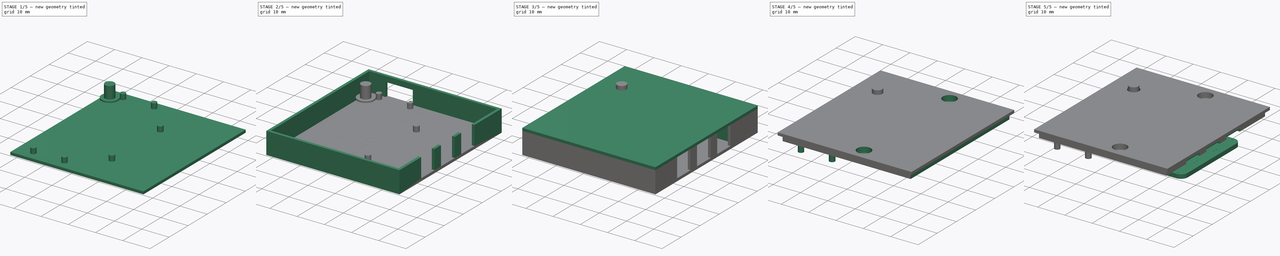
[diagram: build sequence overview — one tinted view per stage of 5, left to right]
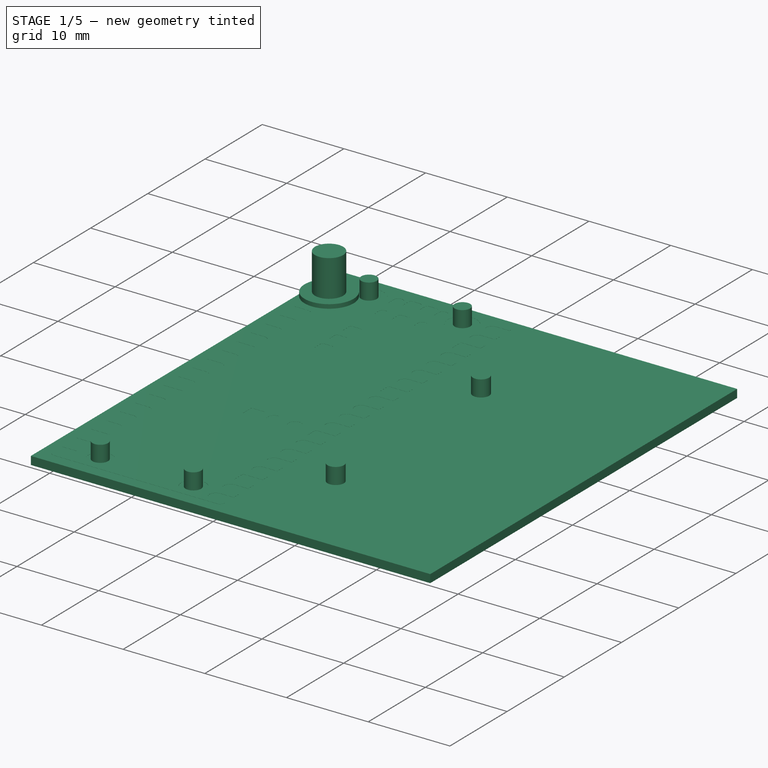
[diagram: stage 1 of 5 — iso view after this stage's code; geometry added in this stage tinted green]
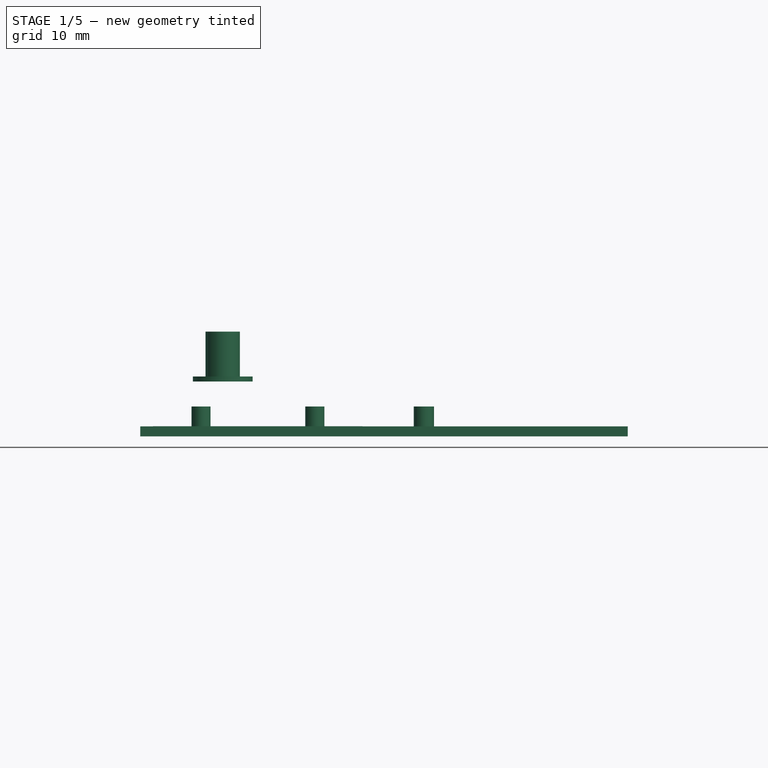
[diagram: stage 1 of 5 — front view after this stage's code; geometry added in this stage tinted green]
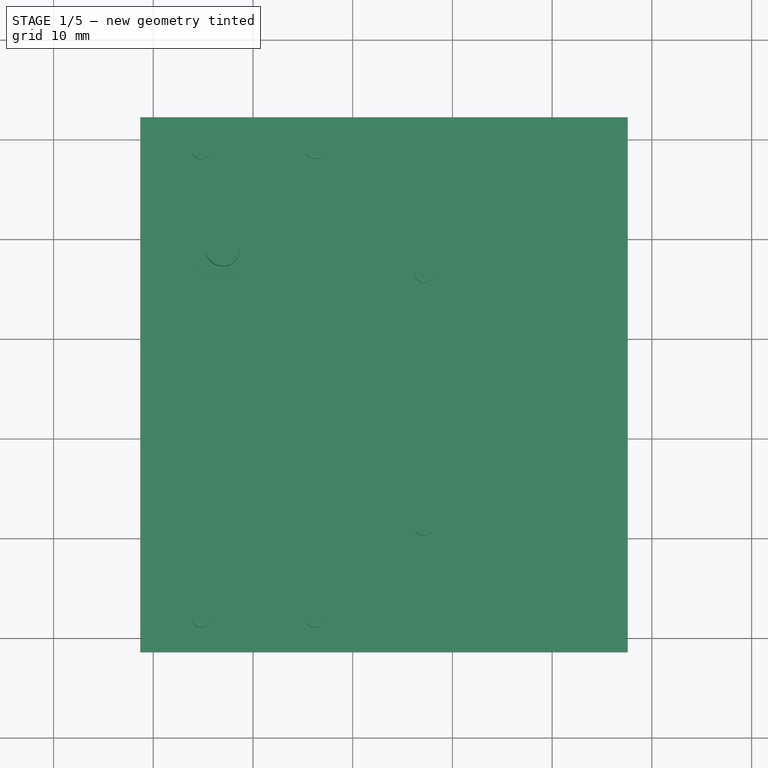
[diagram: stage 1 of 5 — top view after this stage's code; geometry added in this stage tinted green]
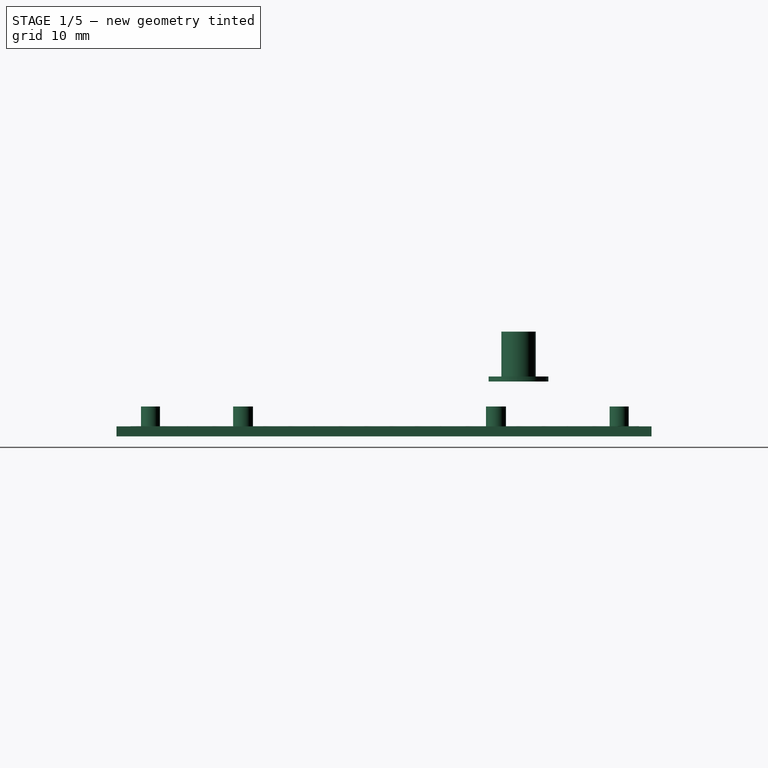
[diagram: stage 1 of 5 — right view after this stage's code; geometry added in this stage tinted green]
FCSTD DOCUMENT  (FreeCAD 1.0R39109 (Git))
Label: web_signalgenerator
License: All rights reserved
LicenseURL: https://en.wikipedia.org/wiki/All_rights_reserved
objects: Sketcher::SketchObject×19, Part::Feature×11, PartDesign::Pad×11, PartDesign::Pocket×6, App::Part×4, PartDesign::Body×3, PartDesign::SubShapeBinder×2, PartDesign::ShapeBinder×2, Part::FeaturePython×1, App::DocumentObjectGroup×1
note: 108 computed .brp shape members not serialized (recipe doc carries the construction recipe); baked Part::Feature solids carry a one-line shape summary decoded from their .brp

FEATURE [Part::Feature] Part__Feature  label="SOLDERMASK_TOP"
  shape: bbox 21 x 51 x 0.0127 mm, 1524 faces (baked)
FEATURE [Part::Feature] Part__Feature001  label="Dielectric"
  shape: bbox 21 x 51 x 0.868 mm, 240 faces (baked)
FEATURE [Part::Feature] Part__Feature002  label="SOLDERMASK_BOTTOM"
  shape: bbox 21 x 51 x 0.0127 mm, 330 faces (baked)
FEATURE [App::Part] Shapes
  Group = -> [Part__Feature,Part__Feature001,Part__Feature002]
  Origin = -> Origin
FEATURE [Part::Feature] Part__Feature003  label="AVAGO_QSM"
  shape: bbox 1.65 x 0.725 x 0.675 mm, 50 faces, 5 solids (baked)
FEATURE [Part::Feature] Part__Feature004  label="FCI_10103594-0001LF"
  shape: bbox 8.086 x 6.171 x 3.591 mm, 837 faces, 7 solids (baked)
FEATURE [Part::Feature] Part__Feature005  label="RF_SHIELD_PICOW"
  shape: bbox 12 x 10 x 1.7 mm, 6 faces (baked)
FEATURE [Part::Feature] Part__Feature006  label="RPI_RP2040"
  shape: bbox 7 x 7 x 0.9 mm, 6 faces (baked)
FEATURE [Part::Feature] Part__Feature007  label="RT-WDFN-14AL"
  shape: bbox 4 x 3 x 0.8 mm, 6 faces (baked)
FEATURE [Part::Feature] Part__Feature008  label="SOD123FL"
  shape: bbox 1.65 x 3.6 x 0.98 mm, 44 faces, 4 solids (baked)
FEATURE [Part::Feature] Part__Feature009  label="TONEPARTS_TP-1221U-K9K5325"
  shape: bbox 3.2 x 4.25 x 2.5 mm, 15 faces (baked)
FEATURE [Part::Feature] Part__Feature010  label="XTAL320X250X100"
  shape: bbox 3.2 x 2.5 x 0.92 mm, 26 faces (baked)
FEATURE [App::Part] Symbols
  Group = -> [Part__Feature003,Part__Feature004,Part__Feature005,Part__Feature006,Part__Feature007,Part__Feature008,Part__Feature009,Part__Feature010]
  Origin = -> Origin001
FEATURE [App::Part] rpi_picow_r3_2_brd  label="rpi-picow-r3-2.brd"
  Group = -> [Shapes,Symbols]
  Origin = -> Origin002
FEATURE [Sketcher::SketchObject] PCB_Border
  ArcFitTolerance = 1e-06
  FullyConstrained = false
  MakeInternals = false
  sketch-geometry (8):
    g0: LineSegment StartX=0 StartY=2.54 StartZ=0 EndX=0 EndY=19.05 EndZ=0
    g1: ArcOfCircle CenterX=2.54 CenterY=19.05 CenterZ=0 NormalX=0 NormalY=0 NormalZ=-1 AngleXU=-1.4e-15 Radius=2.54 StartAngle=0 EndAngle=1.5708
    g2: LineSegment StartX=2.54 StartY=21.59 StartZ=0 EndX=27.94 EndY=21.59 EndZ=0
    g3: ArcOfCircle CenterX=27.94 CenterY=19.05 CenterZ=0 NormalX=0 NormalY=0 NormalZ=-1 AngleXU=1.5708 Radius=2.54 StartAngle=0 EndAngle=1.5708
    g4: LineSegment StartX=30.48 StartY=19.05 StartZ=0 EndX=30.48 EndY=2.54 EndZ=0
    g5: ArcOfCircle CenterX=27.94 CenterY=2.54 CenterZ=0 NormalX=0 NormalY=0 NormalZ=-1 AngleXU=3.14159 Radius=2.54 StartAngle=0 EndAngle=1.5708
    g6: LineSegment StartX=27.94 StartY=0 StartZ=0 EndX=2.54 EndY=0 EndZ=0
    g7: ArcOfCircle CenterX=2.54 CenterY=2.54 CenterZ=0 NormalX=0 NormalY=0 NormalZ=-1 AngleXU=-1.5708 Radius=2.54 StartAngle=0 EndAngle=1.5708
FEATURE [Sketcher::SketchObject] PCB_Holes
  ArcFitTolerance = 1e-06
  FullyConstrained = false
  MakeInternals = false
  sketch-geometry (22):
    g0: Circle CenterX=29.464 CenterY=19.05 CenterZ=0 NormalX=0 NormalY=0 NormalZ=1 AngleXU=0 Radius=0.19785
    g1: Circle CenterX=21.082 CenterY=19.05 CenterZ=0 NormalX=0 NormalY=0 NormalZ=1 AngleXU=0 Radius=0.19785
    g2: Circle CenterX=19.558 CenterY=19.05 CenterZ=0 NormalX=0 NormalY=0 NormalZ=1 AngleXU=0 Radius=0.19785
    g3: Circle CenterX=10.922 CenterY=19.05 CenterZ=0 NormalX=0 NormalY=0 NormalZ=1 AngleXU=0 Radius=0.19785
    g4: Circle CenterX=9.398 CenterY=19.05 CenterZ=0 NormalX=0 NormalY=0 NormalZ=1 AngleXU=0 Radius=0.19785
    g5: Circle CenterX=1.016 CenterY=19.05 CenterZ=0 NormalX=0 NormalY=0 NormalZ=1 AngleXU=0 Radius=0.19785
    g6: Circle CenterX=27.432 CenterY=9.398 CenterZ=0 NormalX=0 NormalY=0 NormalZ=1 AngleXU=0 Radius=0.19785
    g7: Circle CenterX=16.002 CenterY=12.446 CenterZ=0 NormalX=0 NormalY=0 NormalZ=1 AngleXU=0 Radius=0.19785
    g8: Circle CenterX=17.018 CenterY=16.002 CenterZ=0 NormalX=0 NormalY=0 NormalZ=1 AngleXU=0 Radius=0.19785
    g9: Circle CenterX=14.986 CenterY=16.002 CenterZ=0 NormalX=0 NormalY=0 NormalZ=1 AngleXU=0 Radius=0.19785
    g10: Circle CenterX=13.716 CenterY=14.478 CenterZ=0 NormalX=0 NormalY=0 NormalZ=1 AngleXU=0 Radius=0.19785
    g11: Circle CenterX=22.098 CenterY=8.382 CenterZ=0 NormalX=0 NormalY=0 NormalZ=1 AngleXU=0 Radius=0.19785
    g12: Circle CenterX=18.034 CenterY=5.842 CenterZ=0 NormalX=0 NormalY=0 NormalZ=1 AngleXU=0 Radius=0.19785
    g13: Circle CenterX=27.94 CenterY=2.54 CenterZ=0 NormalX=0 NormalY=0 NormalZ=1 AngleXU=0 Radius=1.251
    g14: Circle CenterX=2.54 CenterY=2.54 CenterZ=0 NormalX=0 NormalY=0 NormalZ=1 AngleXU=0 Radius=1.251
    g15: Circle CenterX=22.86 CenterY=2.54 CenterZ=0 NormalX=0 NormalY=0 NormalZ=1 AngleXU=0 Radius=0.501
    g16: Circle CenterX=20.32 CenterY=2.54 CenterZ=0 NormalX=0 NormalY=0 NormalZ=1 AngleXU=0 Radius=0.501
    g17: Circle CenterX=17.78 CenterY=2.54 CenterZ=0 NormalX=0 NormalY=0 NormalZ=1 AngleXU=0 Radius=0.501
    g18: Circle CenterX=15.24 CenterY=2.54 CenterZ=0 NormalX=0 NormalY=0 NormalZ=1 AngleXU=0 Radius=0.501
    g19: Circle CenterX=12.7 CenterY=2.54 CenterZ=0 NormalX=0 NormalY=0 NormalZ=1 AngleXU=0 Radius=0.501
    g20: Circle CenterX=10.16 CenterY=2.54 CenterZ=0 NormalX=0 NormalY=0 NormalZ=1 AngleXU=0 Radius=0.501
    g21: Circle CenterX=7.62 CenterY=2.54 CenterZ=0 NormalX=0 NormalY=0 NormalZ=1 AngleXU=0 Radius=0.501
FEATURE [Sketcher::SketchObject] Sketch
  ArcFitTolerance = 1e-06
  AttachmentSupport = -> [Part__Feature002]
  FullyConstrained = false
  MakeInternals = false
  MapMode = 5
  Placement = pos=(0,0,-0.9607) rot=(1,0,0;3.14159rad)
  sketch-geometry (4):
    g0: LineSegment StartX=-1.3105 StartY=1.41744 StartZ=0 EndX=-1.3105 EndY=-52.238 EndZ=0
    g1: LineSegment StartX=-1.3105 StartY=-52.238 StartZ=0 EndX=47.5855 EndY=-52.238 EndZ=0
    g2: LineSegment StartX=47.5855 StartY=-52.238 StartZ=0 EndX=47.5855 EndY=1.41744 EndZ=0
    g3: LineSegment StartX=47.5855 StartY=1.41744 StartZ=0 EndX=-1.3105 EndY=1.41744 EndZ=0
  constraints (8):
    c: Coincident(g0,g1)
    c: Coincident(g1,g2)
    c: Coincident(g2,g3)
    c: Coincident(g3,g0)
    c: Vertical(g0)
    c: Vertical(g2)
    c: Horizontal(g1)
    c: Horizontal(g3)
FEATURE [PartDesign::Pad] Pad
  Direction = (0,0,-1)
  Length = 1
  Length2 = 10
  Profile = -> Sketch
  ReferenceAxis = -> Sketch [N_Axis]
  Refine = true
  Suppressed = false
  Type = 0
FEATURE [Sketcher::SketchObject] Sketch001
  ArcFitTolerance = 1e-06
  AttachmentSupport = -> [Pad]
  FullyConstrained = false
  MakeInternals = false
  MapMode = 5
  Placement = pos=(0,0,-0.9607) rot=(0,0,1;0rad)
  sketch-geometry (6):
    g0: Circle CenterX=16.2121 CenterY=49.0044 CenterZ=0 NormalX=0 NormalY=0 NormalZ=1 AngleXU=0 Radius=0.95
    g1: Circle CenterX=4.79462 CenterY=2.00088 CenterZ=0 NormalX=0 NormalY=0 NormalZ=1 AngleXU=0 Radius=0.95
    g2: Circle CenterX=16.1908 CenterY=1.99775 CenterZ=0 NormalX=0 NormalY=0 NormalZ=1 AngleXU=0 Radius=0.95
    g3: Circle CenterX=4.78756 CenterY=48.9889 CenterZ=0 NormalX=0 NormalY=0 NormalZ=1 AngleXU=0 Radius=0.95
    g4: Circle CenterX=27.1477 CenterY=36.6424 CenterZ=0 NormalX=0 NormalY=0 NormalZ=1 AngleXU=0 Radius=1
    g5: Circle CenterX=27.1242 CenterY=11.2748 CenterZ=0 NormalX=0 NormalY=0 NormalZ=1 AngleXU=0 Radius=1
  constraints (6):
    c: Diameter(g0) = 1.9
    c: Diameter(g1) = 1.9
    c: Diameter(g2) = 1.9
    c: Diameter(g3) = 1.9
    c: Diameter(g4) = 2
    c: Diameter(g5) = 2
FEATURE [PartDesign::Pad] Pad001
  BaseFeature = -> Pad
  Direction = (0,0,1)
  Length = 2
  Length2 = 10
  Profile = -> Sketch001
  ReferenceAxis = -> Sketch001 [N_Axis]
  Refine = true
  Suppressed = false
  Type = 0
FEATURE [PartDesign::Body] Body
  AllowCompound = false
  Group = -> [Sketch,Pad,Sketch001,Pad001,Sketch002,Pad002,Sketch003,Pocket,Sketch004,Pocket001,Sketch012,Pad006,Sketch013,Pad007,Sketch014,Pad008]
  Origin = -> Origin004
  Tip = -> Pad008
FEATURE [PartDesign::ShapeBinder] CopyPocket005
  TraceSupport = false
FEATURE [Sketcher::SketchObject] Sketch015
  ArcFitTolerance = 1e-06
  AttachmentSupport = -> [CopyPocket005]
  FullyConstrained = false
  MakeInternals = false
  MapMode = 5
  Placement = pos=(0,0,4.0393) rot=(1,0,0;3.14159rad)
  sketch-geometry (1):
    g0: Circle CenterX=6.96652 CenterY=-38.9009 CenterZ=0 NormalX=0 NormalY=0 NormalZ=1 AngleXU=0 Radius=1.72333
FEATURE [PartDesign::Pad] Pad009
  Direction = (0,0,-1)
  Length = 4.5
  Length2 = 10
  Profile = -> Sketch015
  ReferenceAxis = -> Sketch015 [N_Axis]
  Refine = true
  Reversed = true
  Suppressed = false
  Type = 0
FEATURE [Sketcher::SketchObject] Sketch016
  ArcFitTolerance = 1e-06
  AttachmentSupport = -> [Pad009]
  ExternalGeometry = -> [Pad009]
  FullyConstrained = true
  MakeInternals = false
  MapMode = 5
  Placement = pos=(0,0,4.0393) rot=(1,0,0;3.14159rad)
  sketch-geometry (1):
    g0: Circle CenterX=6.96652 CenterY=-38.9009 CenterZ=0 NormalX=0 NormalY=0 NormalZ=1 AngleXU=0 Radius=3
  constraints (2):
    c: Coincident(g0,g-3)
    c: Diameter(g0) = 6
FEATURE [PartDesign::Pad] Pad010
  BaseFeature = -> Pad009
  Direction = (0,0,-1)
  Length = 0.5
  Length2 = 10
  Profile = -> Sketch016
  ReferenceAxis = -> Sketch016 [N_Axis]
  Refine = true
  Suppressed = false
  Type = 0
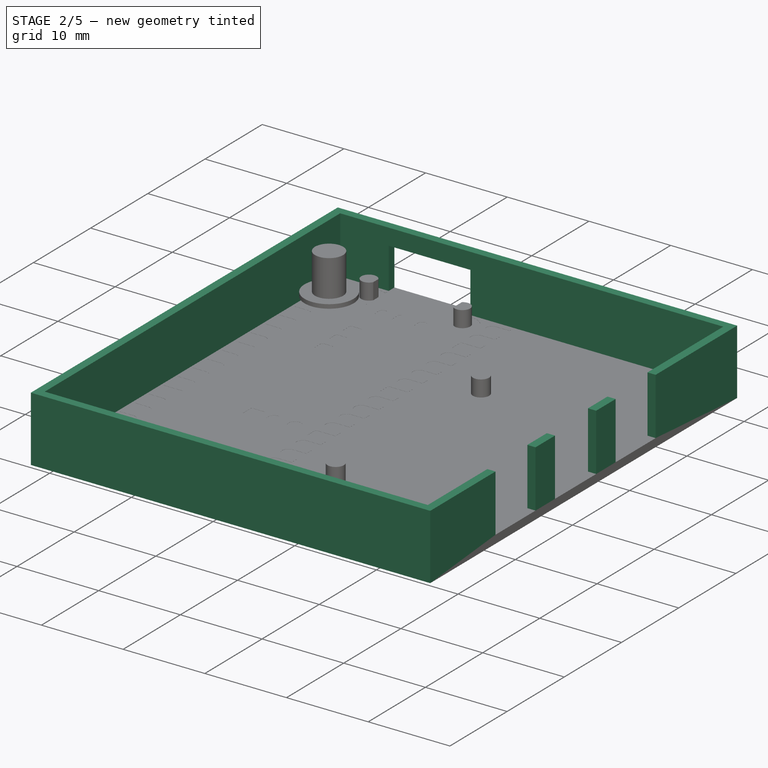
[diagram: stage 2 of 5 — iso view after this stage's code; geometry added in this stage tinted green]
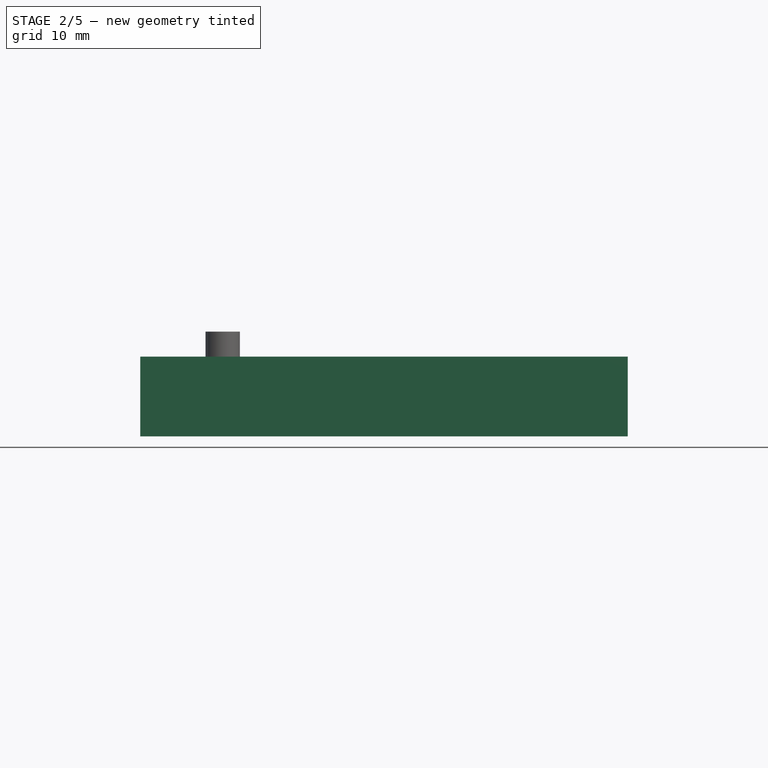
[diagram: stage 2 of 5 — front view after this stage's code; geometry added in this stage tinted green]
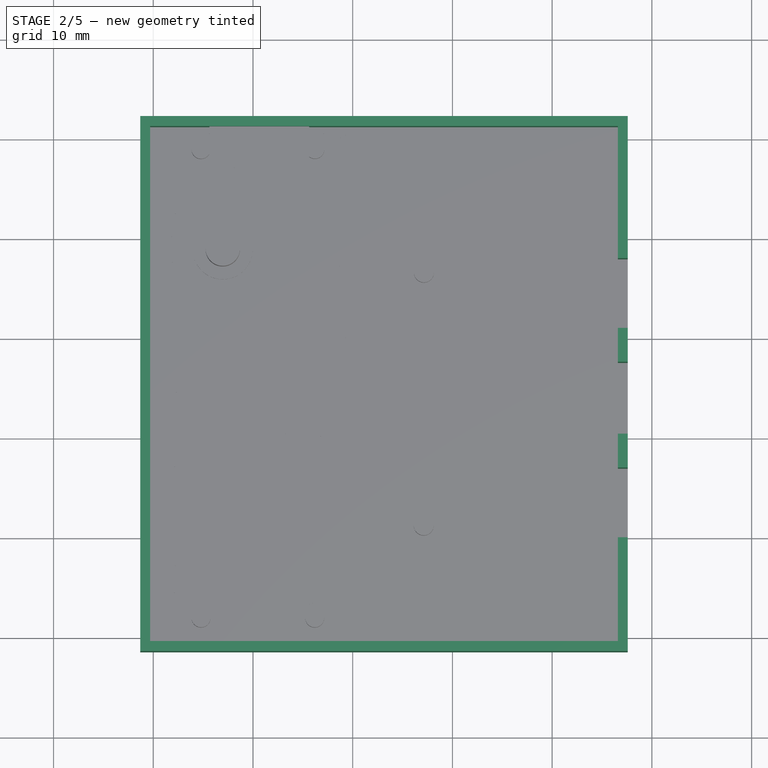
[diagram: stage 2 of 5 — top view after this stage's code; geometry added in this stage tinted green]
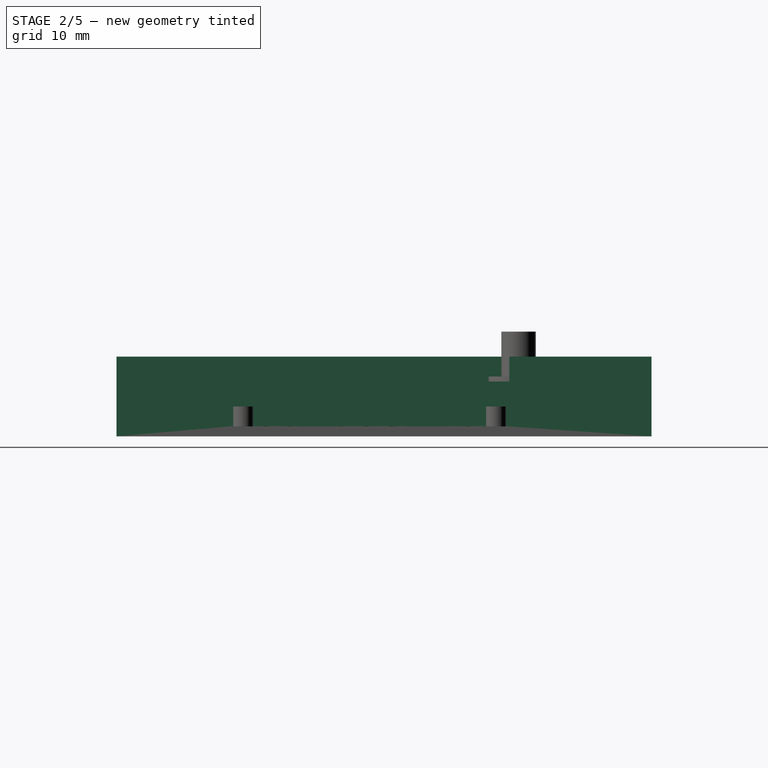
[diagram: stage 2 of 5 — right view after this stage's code; geometry added in this stage tinted green]
FEATURE [Sketcher::SketchObject] Sketch002
  ArcFitTolerance = 1e-06
  AttachmentSupport = -> [Pad001]
  ExternalGeometry = -> [Pad001]
  FullyConstrained = true
  MakeInternals = false
  MapMode = 5
  Placement = pos=(0,0,-0.9607) rot=(0,0,1;0rad)
  sketch-geometry (14):
    g0: LineSegment StartX=-1.3105 StartY=52.238 StartZ=0 EndX=-1.3105 EndY=-1.41744 EndZ=0
    g1: LineSegment StartX=-0.310495 StartY=-0.417441 StartZ=0 EndX=-0.310495 EndY=52.238 EndZ=0
    g2: LineSegment StartX=-0.310495 StartY=52.238 StartZ=0 EndX=-1.3105 EndY=52.238 EndZ=0
    g3: LineSegment StartX=46.5855 StartY=52.238 StartZ=0 EndX=46.5855 EndY=-1.41744 EndZ=0
    g4: LineSegment StartX=46.5855 StartY=-1.41744 StartZ=0 EndX=47.5855 EndY=-1.41744 EndZ=0
    g5: LineSegment StartX=47.5855 StartY=-1.41744 StartZ=0 EndX=47.5855 EndY=52.238 EndZ=0
    g6: LineSegment StartX=47.5855 StartY=52.238 StartZ=0 EndX=46.5855 EndY=52.238 EndZ=0
    g7: LineSegment StartX=-0.310495 StartY=52.238 StartZ=0 EndX=-0.310495 EndY=51.238 EndZ=0
    g8: LineSegment StartX=-0.310495 StartY=51.238 StartZ=0 EndX=46.5855 EndY=51.238 EndZ=0
    g9: LineSegment StartX=46.5855 StartY=51.238 StartZ=0 EndX=46.5855 EndY=52.238 EndZ=0
    g10: LineSegment StartX=46.5855 StartY=52.238 StartZ=0 EndX=-0.310495 EndY=52.238 EndZ=0
    g11: LineSegment StartX=-1.3105 StartY=-1.41744 StartZ=0 EndX=46.5855 EndY=-1.41744 EndZ=0
    g12: LineSegment StartX=46.5855 StartY=-1.41744 StartZ=0 EndX=46.5855 EndY=-0.417441 EndZ=0
    g13: LineSegment StartX=46.5855 StartY=-0.417441 StartZ=0 EndX=-0.310495 EndY=-0.417441 EndZ=0
  constraints (35):
    c: Coincident(g1,g2)
    c: Coincident(g2,g0)
    c: Vertical(g1)
    c: Horizontal(g2)
    c: DistanceX(g2,g2) = 1
    c: Coincident(g0,g-4)
    c: Coincident(g0,g-4)
    c: Coincident(g3,g4)
    c: Coincident(g4,g5)
    c: Coincident(g5,g6)
    c: Coincident(g6,g3)
    c: Vertical(g3)
    c: Horizontal(g4)
    c: Horizontal(g6)
    c: Coincident(g4,g-6)
    c: DistanceX(g4,g4) = 1
    c: Coincident(g5,g-5)
    c: Coincident(g7,g8)
    c: Coincident(g8,g9)
    c: Coincident(g9,g10)
    c: Coincident(g10,g7)
    c: Vertical(g7)
    c: Vertical(g9)
    c: Horizontal(g8)
    c: Coincident(g9,g3)
    c: Coincident(g7,g1)
    c: Distance(g10,g8) = 1
    c: Coincident(g11,g12)
    c: Coincident(g12,g13)
    c: Vertical(g12)
    c: Horizontal(g13)
    c: Coincident(g11,g3)
    c: Distance(g11,g13) = 1
    c: Coincident(g1,g13)
    c: Coincident(g11,g0)
FEATURE [PartDesign::Pad] Pad002
  BaseFeature = -> Pad001
  Direction = (0,0,1)
  Length = 7
  Length2 = 10
  Profile = -> Sketch002
  ReferenceAxis = -> Sketch002 [N_Axis]
  Refine = true
  Suppressed = false
  Type = 0
FEATURE [Sketcher::SketchObject] Sketch003
  ArcFitTolerance = 1e-06
  AttachmentSupport = -> [Pad002]
  ExternalGeometry = -> [Pad002]
  FullyConstrained = false
  MakeInternals = false
  MapMode = 5
  Placement = pos=(47.5855,0,0) rot=(0.57735,0.57735,0.57735;2.0944rad)
  sketch-geometry (12):
    g0: LineSegment StartX=9.98915 StartY=6.0393 StartZ=0 EndX=9.98915 EndY=-0.9607 EndZ=0
    g1: LineSegment StartX=9.98915 StartY=-0.9607 StartZ=0 EndX=16.9892 EndY=-0.9607 EndZ=0
    g2: LineSegment StartX=16.9892 StartY=-0.9607 StartZ=0 EndX=16.9892 EndY=6.0393 EndZ=0
    g3: LineSegment StartX=16.9892 StartY=6.0393 StartZ=0 EndX=9.98915 EndY=6.0393 EndZ=0
    g4: LineSegment StartX=20.3892 StartY=6.0393 StartZ=0 EndX=20.3892 EndY=-0.9607 EndZ=0
    g5: LineSegment StartX=20.3892 StartY=-0.9607 StartZ=0 EndX=27.5892 EndY=-0.9607 EndZ=0
    g6: LineSegment StartX=27.5892 StartY=-0.9607 StartZ=0 EndX=27.5892 EndY=6.0393 EndZ=0
    g7: LineSegment StartX=27.5892 StartY=6.0393 StartZ=0 EndX=20.3892 EndY=6.0393 EndZ=0
    g8: LineSegment StartX=30.9892 StartY=6.0393 StartZ=0 EndX=30.9892 EndY=-0.9607 EndZ=0
    g9: LineSegment StartX=30.9892 StartY=-0.9607 StartZ=0 EndX=37.9892 EndY=-0.9607 EndZ=0
    g10: LineSegment StartX=37.9892 StartY=-0.9607 StartZ=0 EndX=37.9892 EndY=6.0393 EndZ=0
    g11: LineSegment StartX=37.9892 StartY=6.0393 StartZ=0 EndX=30.9892 EndY=6.0393 EndZ=0
  constraints (35):
    c: Coincident(g0,g1)
    c: Coincident(g1,g2)
    c: Coincident(g2,g3)
    c: Coincident(g3,g0)
    c: Vertical(g0)
    c: Vertical(g2)
    c: Horizontal(g1)
    c: Horizontal(g3)
    c: Distance(g0,g2) = 7
    c: Distance(g1,g3) = 7
    c: PointOnObject(g0,g-3)
    c: Coincident(g4,g5)
    c: Coincident(g5,g6)
    c: Coincident(g6,g7)
    c: Coincident(g7,g4)
    c: Vertical(g4)
    c: Vertical(g6)
    c: Horizontal(g5)
    c: Horizontal(g7)
    c: Distance(g4,g6) = 7.2
    c: Distance(g5,g7) = 7
    c: PointOnObject(g4,g-3)
    c: Distance(g4,g2) = 3.4
    c: Coincident(g8,g9)
    c: Coincident(g9,g10)
    c: Coincident(g10,g11)
    c: Coincident(g11,g8)
    c: Vertical(g8)
    c: Vertical(g10)
    c: Horizontal(g9)
    c: Horizontal(g11)
    c: Distance(g8,g10) = 7
    c: Distance(g9,g11) = 7
    c: PointOnObject(g8,g-3)
    c: Distance(g6,g8) = 3.4
FEATURE [PartDesign::Pocket] Pocket
  BaseFeature = -> Pad002
  Direction = (-1,0,0)
  Length = 5
  Length2 = 5
  Profile = -> Sketch003
  ReferenceAxis = -> Sketch003 [N_Axis]
  Refine = true
  Suppressed = false
  Type = 0
FEATURE [Sketcher::SketchObject] Sketch004
  ArcFitTolerance = 1e-06
  AttachmentSupport = -> [Pocket]
  ExternalGeometry = -> [Pocket]
  FullyConstrained = false
  MakeInternals = false
  MapMode = 5
  Placement = pos=(0,52.238,0) rot=(0,0.707107,0.707107;3.14159rad)
  sketch-geometry (4):
    g0: LineSegment StartX=-15.6284 StartY=4.0393 StartZ=0 EndX=-15.6284 EndY=-0.9607 EndZ=0
    g1: LineSegment StartX=-15.6284 StartY=-0.9607 StartZ=0 EndX=-5.62842 EndY=-0.9607 EndZ=0
    g2: LineSegment StartX=-5.62842 StartY=-0.9607 StartZ=0 EndX=-5.62842 EndY=4.0393 EndZ=0
    g3: LineSegment StartX=-5.62842 StartY=4.0393 StartZ=0 EndX=-15.6284 EndY=4.0393 EndZ=0
  constraints (11):
    c: Coincident(g0,g1)
    c: Coincident(g1,g2)
    c: Coincident(g2,g3)
    c: Coincident(g3,g0)
    c: Vertical(g0)
    c: Vertical(g2)
    c: Horizontal(g1)
    c: Horizontal(g3)
    c: Distance(g0,g2) = 10
    c: Distance(g1,g3) = 5
    c: Distance(g1,g-3) = 1
FEATURE [PartDesign::Pocket] Pocket001
  BaseFeature = -> Pocket
  Direction = (0,-1,2e-16)
  Length = 5
  Length2 = 5
  Profile = -> Sketch004
  ReferenceAxis = -> Sketch004 [N_Axis]
  Refine = true
  Suppressed = false
  Type = 0
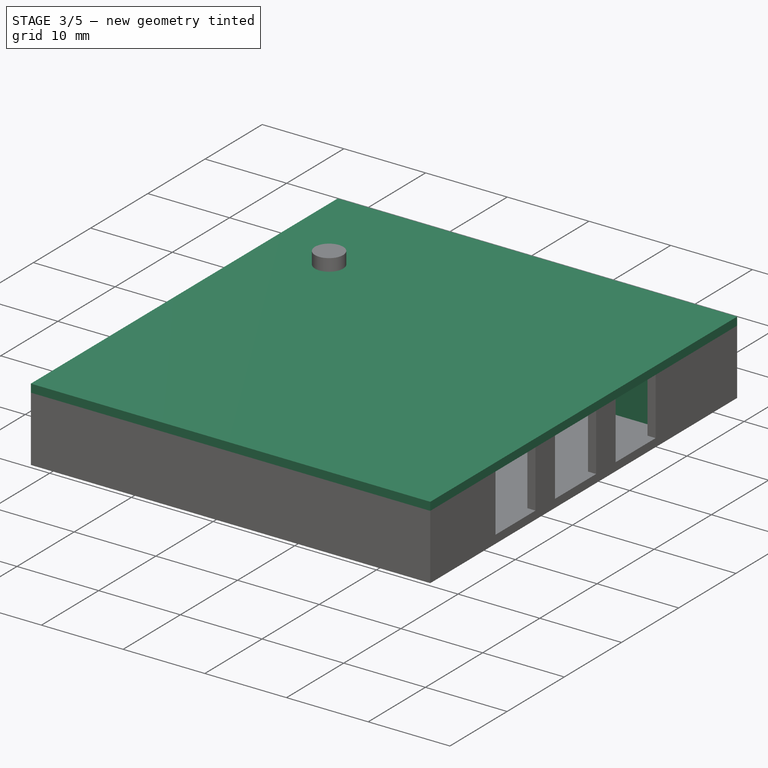
[diagram: stage 3 of 5 — iso view after this stage's code; geometry added in this stage tinted green]
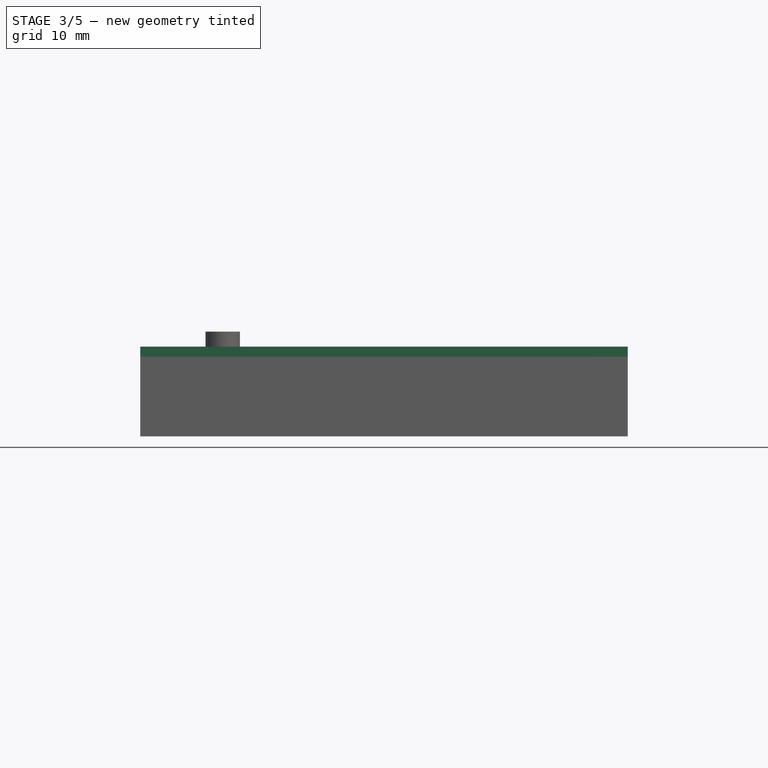
[diagram: stage 3 of 5 — front view after this stage's code; geometry added in this stage tinted green]
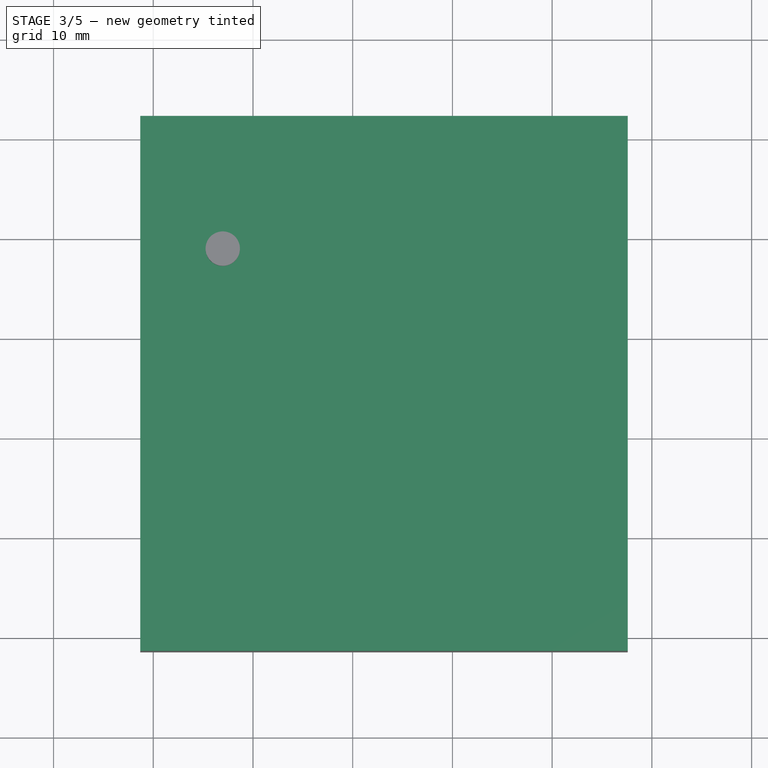
[diagram: stage 3 of 5 — top view after this stage's code; geometry added in this stage tinted green]
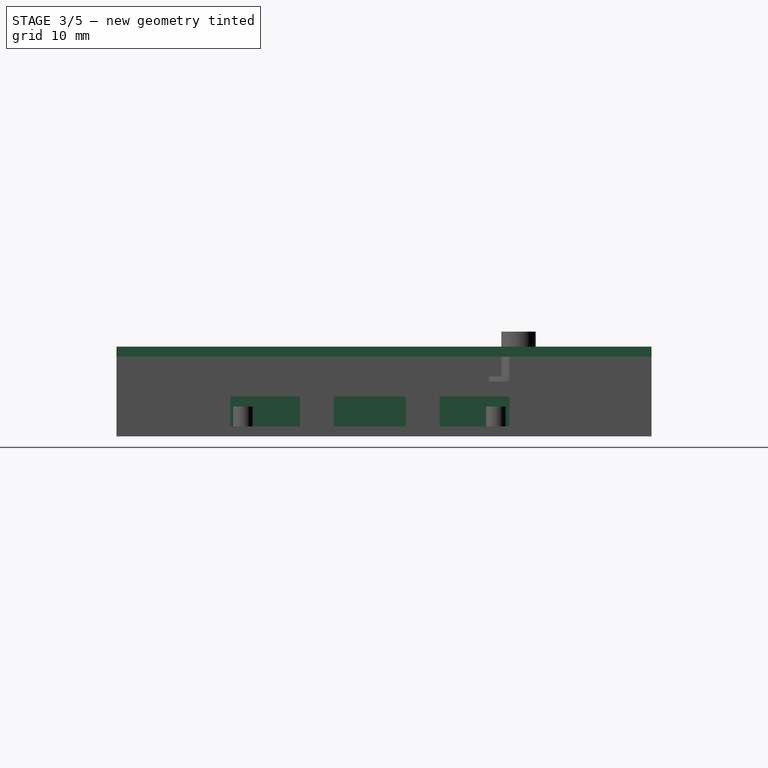
[diagram: stage 3 of 5 — right view after this stage's code; geometry added in this stage tinted green]
FEATURE [PartDesign::SubShapeBinder] Binder
  BindCopyOnChange = 0
  BindMode = 0
  ClaimChildren = false
  Context = -> Body001 [Binder.]
  Fuse = false
  MakeFace = true
  OffsetFill = false
  OffsetIntersection = false
  OffsetJoinType = 0
  OffsetOpenResult = false
  PartialLoad = false
  Refine = true
  Relative = true
  Support = -> [Sketch005]
  _Version = 2
FEATURE [PartDesign::ShapeBinder] CopyBinder
  TraceSupport = false
FEATURE [Sketcher::SketchObject] Sketch005
  ArcFitTolerance = 1e-06
  AttachmentSupport = -> [CopyBinder]
  ExternalGeometry = -> [CopyBinder]
  FullyConstrained = true
  MakeInternals = false
  MapMode = 5
  Placement = pos=(0,0,6.0393) rot=(0,0,1;0rad)
  sketch-geometry (4):
    g0: LineSegment StartX=-1.3105 StartY=52.238 StartZ=0 EndX=-1.3105 EndY=-1.41744 EndZ=0
    g1: LineSegment StartX=-1.3105 StartY=-1.41744 StartZ=0 EndX=47.5855 EndY=-1.41744 EndZ=0
    g2: LineSegment StartX=47.5855 StartY=-1.41744 StartZ=0 EndX=47.5855 EndY=52.238 EndZ=0
    g3: LineSegment StartX=47.5855 StartY=52.238 StartZ=0 EndX=-1.3105 EndY=52.238 EndZ=0
  constraints (10):
    c: Coincident(g0,g1)
    c: Coincident(g1,g2)
    c: Coincident(g2,g3)
    c: Coincident(g3,g0)
    c: Vertical(g0)
    c: Vertical(g2)
    c: Horizontal(g1)
    c: Horizontal(g3)
    c: Coincident(g0,g-13)
    c: Coincident(g1,g-5)
FEATURE [PartDesign::Pad] Pad003
  Direction = (0,0,1)
  Length = 1
  Length2 = 10
  Profile = -> Sketch005
  ReferenceAxis = -> Sketch005 [N_Axis]
  Refine = true
  Suppressed = false
  Type = 0
FEATURE [PartDesign::Body] Body001
  AllowCompound = false
  Group = -> [CopyBinder,Sketch005,Binder,Pad003,Sketch006,Pad004,Binder001,Sketch007,Pad005,Sketch008,Pocket002,Sketch009,Pocket003,Sketch010,Pocket004,Sketch011,Pocket005]
  Origin = -> Origin005
  Tip = -> Pocket005
FEATURE [Sketcher::SketchObject] Sketch012
  ArcFitTolerance = 1e-06
  AttachmentSupport = -> [Pocket001]
  ExternalGeometry = -> [Pocket001]
  FullyConstrained = true
  MakeInternals = false
  MapMode = 5
  Placement = pos=(0,0,-0.9607) rot=(0,0,1;0rad)
  sketch-geometry (4):
    g0: Circle CenterX=27.0855 CenterY=47.738 CenterZ=0 NormalX=0 NormalY=0 NormalZ=1 AngleXU=0 Radius=1.45
    g1: Circle CenterX=27.0855 CenterY=47.738 CenterZ=0 NormalX=0 NormalY=0 NormalZ=1 AngleXU=0 Radius=3
    g2: Circle CenterX=27.0855 CenterY=3.08256 CenterZ=0 NormalX=0 NormalY=0 NormalZ=1 AngleXU=0 Radius=1.45
    g3: Circle CenterX=27.0855 CenterY=3.08256 CenterZ=0 NormalX=0 NormalY=0 NormalZ=1 AngleXU=0 Radius=3
  constraints (10):
    c: Distance(g0,g-4) = 20.5
    c: Distance(g0,g-3) = 4.5
    c: Diameter(g0) = 2.9
    c: Diameter(g1) = 6
    c: Coincident(g1,g0)
    c: Diameter(g2) = 2.9
    c: Distance(g2,g-5) = 20.5
    c: Distance(g2,g-6) = 4.5
    c: Diameter(g3) = 6
    c: Coincident(g3,g2)
FEATURE [PartDesign::Pad] Pad006
  BaseFeature = -> Pocket001
  Direction = (0,0,1)
  Length = 5
  Length2 = 10
  Profile = -> Sketch012
  ReferenceAxis = -> Sketch012 [N_Axis]
  Refine = true
  Suppressed = false
  Type = 0
FEATURE [Sketcher::SketchObject] Sketch013
  ArcFitTolerance = 1e-06
  AttachmentSupport = -> [Pad006]
  ExternalGeometry = -> [Pad006]
  FullyConstrained = false
  MakeInternals = false
  MapMode = 5
  Placement = pos=(0,0,-0.9607) rot=(0,0,1;0rad)
  sketch-geometry (8):
    g0: LineSegment StartX=28.5771 StartY=40.203 StartZ=0 EndX=46.5855 EndY=40.203 EndZ=0
    g1: LineSegment StartX=46.5855 StartY=40.203 StartZ=0 EndX=46.5855 EndY=51.238 EndZ=0
    g2: LineSegment StartX=46.5855 StartY=51.238 StartZ=0 EndX=28.5771 EndY=51.238 EndZ=0
    g3: LineSegment StartX=28.5771 StartY=51.238 StartZ=0 EndX=28.5771 EndY=40.203 EndZ=0
    g4: LineSegment StartX=46.5855 StartY=-0.417441 StartZ=0 EndX=46.5855 EndY=7.51365 EndZ=0
    g5: LineSegment StartX=46.5855 StartY=7.51365 StartZ=0 EndX=29.2786 EndY=7.51365 EndZ=0
    g6: LineSegment StartX=29.2786 StartY=7.51365 StartZ=0 EndX=29.2786 EndY=-0.417441 EndZ=0
    g7: LineSegment StartX=29.2786 StartY=-0.417441 StartZ=0 EndX=46.5855 EndY=-0.417441 EndZ=0
  constraints (18):
    c: Coincident(g0,g1)
    c: Coincident(g1,g2)
    c: Coincident(g2,g3)
    c: Coincident(g3,g0)
    c: Horizontal(g0)
    c: Horizontal(g2)
    c: Vertical(g1)
    c: Vertical(g3)
    c: Coincident(g1,g-4)
    c: Coincident(g4,g5)
    c: Coincident(g5,g6)
    c: Coincident(g6,g7)
    c: Coincident(g7,g4)
    c: Vertical(g4)
    c: Vertical(g6)
    c: Horizontal(g5)
    c: Horizontal(g7)
    c: Coincident(g4,g-6)
FEATURE [PartDesign::Pad] Pad007
  BaseFeature = -> Pad006
  Direction = (0,0,1)
  Length = 5
  Length2 = 10
  Profile = -> Sketch013
  ReferenceAxis = -> Sketch013 [N_Axis]
  Refine = true
  Suppressed = false
  Type = 0
FEATURE [Sketcher::SketchObject] Sketch014
  ArcFitTolerance = 1e-06
  AttachmentSupport = -> [Pad007]
  ExternalGeometry = -> [Pad007]
  FullyConstrained = false
  MakeInternals = false
  MapMode = 5
  Placement = pos=(0,0,-0.9607) rot=(0,0,1;0rad)
  sketch-geometry (8):
    g0: LineSegment StartX=21.6305 StartY=51.238 StartZ=0 EndX=21.6305 EndY=-0.417441 EndZ=0
    g1: LineSegment StartX=21.6305 StartY=-0.417441 StartZ=0 EndX=29.2786 EndY=-0.417441 EndZ=0
    g2: LineSegment StartX=29.2786 StartY=-0.417441 StartZ=0 EndX=29.2786 EndY=7.51365 EndZ=0
    g3: LineSegment StartX=29.2786 StartY=7.51365 StartZ=0 EndX=23.993 EndY=7.51365 EndZ=0
    g4: LineSegment StartX=23.993 StartY=7.51365 StartZ=0 EndX=23.993 EndY=40.203 EndZ=0
    g5: LineSegment StartX=23.993 StartY=40.203 StartZ=0 EndX=28.5771 EndY=40.203 EndZ=0
    g6: LineSegment StartX=28.5771 StartY=40.203 StartZ=0 EndX=28.5771 EndY=51.238 EndZ=0
    g7: LineSegment StartX=28.5771 StartY=51.238 StartZ=0 EndX=21.6305 EndY=51.238 EndZ=0
  constraints (20):
    c: Vertical(g0)
    c: Coincident(g1,g0)
    c: Horizontal(g1)
    c: Vertical(g2)
    c: Coincident(g3,g2)
    c: Horizontal(g3)
    c: Vertical(g4)
    c: Horizontal(g5)
    c: Coincident(g6,g5)
    c: Vertical(g6)
    c: Coincident(g7,g6)
    c: Horizontal(g7)
    c: Coincident(g0,g7)
    c: PointOnObject(g0,g-3)
    c: PointOnObject(g0,g-4)
    c: Coincident(g5,g4)
    c: Coincident(g5,g-5)
    c: Coincident(g4,g3)
    c: Coincident(g2,g-6)
    c: Coincident(g1,g2)
FEATURE [PartDesign::Pad] Pad008
  BaseFeature = -> Pad007
  Direction = (0,0,1)
  Length = 3
  Length2 = 10
  Profile = -> Sketch014
  ReferenceAxis = -> Sketch014 [N_Axis]
  Refine = true
  Suppressed = false
  Type = 0
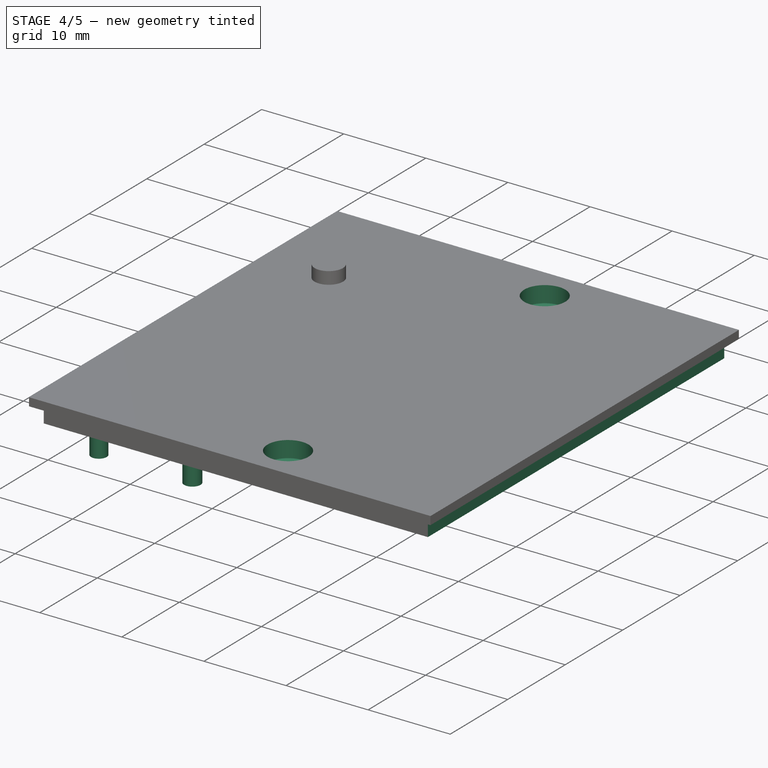
[diagram: stage 4 of 5 — iso view after this stage's code; geometry added in this stage tinted green]
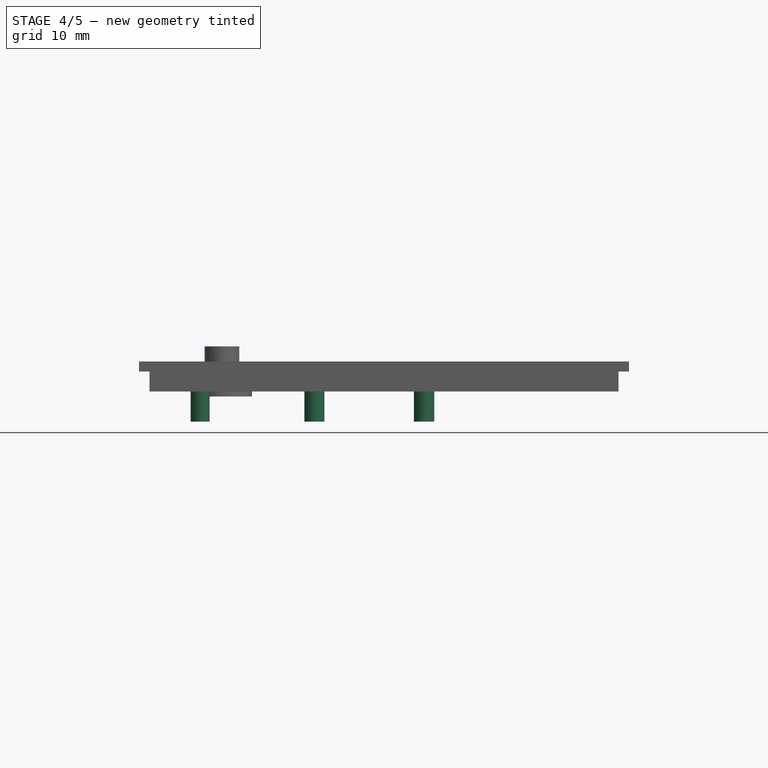
[diagram: stage 4 of 5 — front view after this stage's code; geometry added in this stage tinted green]
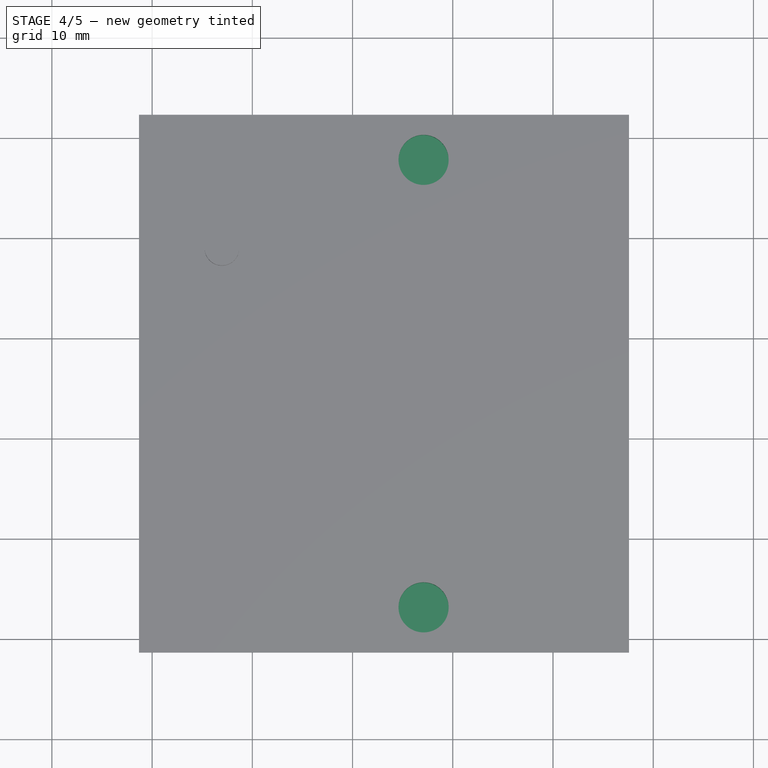
[diagram: stage 4 of 5 — top view after this stage's code; geometry added in this stage tinted green]
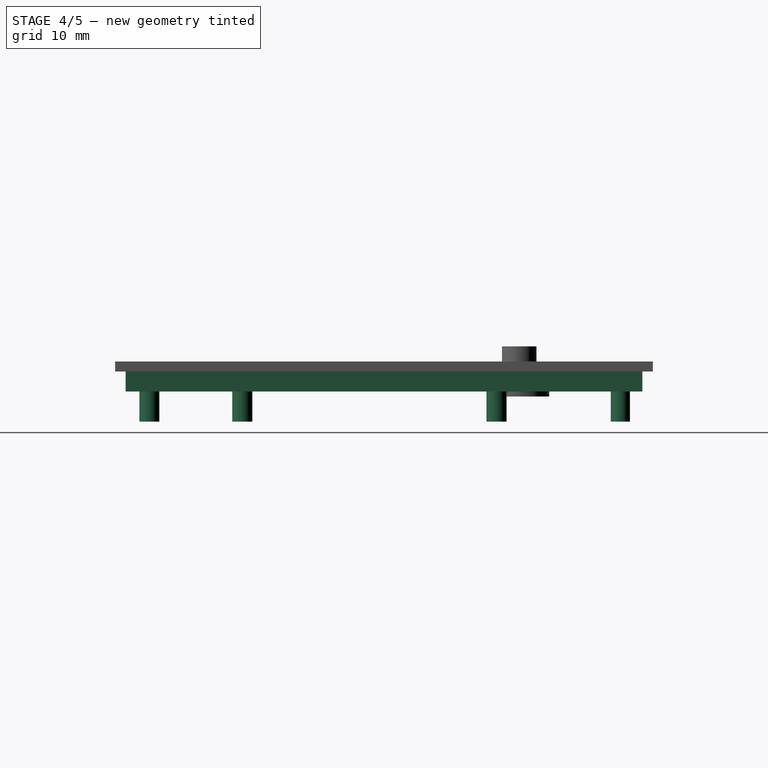
[diagram: stage 4 of 5 — right view after this stage's code; geometry added in this stage tinted green]
FEATURE [Sketcher::SketchObject] Sketch006
  ArcFitTolerance = 1e-06
  AttachmentSupport = -> [Pad003]
  ExternalGeometry = -> [CopyBinder]
  FullyConstrained = true
  MakeInternals = false
  MapMode = 5
  Placement = pos=(0,0,6.0393) rot=(1,0,0;3.14159rad)
  sketch-geometry (4):
    g0: LineSegment StartX=-0.260495 StartY=0.367441 StartZ=0 EndX=-0.260495 EndY=-51.188 EndZ=0
    g1: LineSegment StartX=-0.260495 StartY=-51.188 StartZ=0 EndX=46.5355 EndY=-51.188 EndZ=0
    g2: LineSegment StartX=46.5355 StartY=-51.188 StartZ=0 EndX=46.5355 EndY=0.367441 EndZ=0
    g3: LineSegment StartX=46.5355 StartY=0.367441 StartZ=0 EndX=-0.260495 EndY=0.367441 EndZ=0
  constraints (12):
    c: Coincident(g0,g1)
    c: Coincident(g1,g2)
    c: Coincident(g2,g3)
    c: Coincident(g3,g0)
    c: Vertical(g0)
    c: Vertical(g2)
    c: Horizontal(g1)
    c: Horizontal(g3)
    c: Distance(g-5,g3) = 0.05
    c: Distance(g0,g-6) = 0.05
    c: Distance(g2,g-3) = 0.05
    c: Distance(g1,g-4) = 0.05
FEATURE [PartDesign::Pad] Pad004
  BaseFeature = -> Pad003
  Direction = (0,0,-1)
  Length = 2
  Length2 = 10
  Profile = -> Sketch006
  ReferenceAxis = -> Sketch006 [N_Axis]
  Refine = true
  Suppressed = false
  Type = 0
FEATURE [PartDesign::SubShapeBinder] Binder001
  BindCopyOnChange = 0
  BindMode = 0
  ClaimChildren = false
  Context = -> Body001 [Binder001.]
  Fuse = false
  MakeFace = true
  OffsetFill = false
  OffsetIntersection = false
  OffsetJoinType = 0
  OffsetOpenResult = false
  PartialLoad = false
  Refine = true
  Relative = true
  Support = -> [Body[Pocket001.Face345,Pocket001.Face347,Pocket001.Face352,Pocket001.Face350,Pocket001.Face342,Pocket001.Face343]]
  _Version = 2
FEATURE [Sketcher::SketchObject] Sketch007
  ArcFitTolerance = 1e-06
  AttachmentSupport = -> [Binder001]
  ExternalGeometry = -> [Binder001]
  FullyConstrained = false
  MakeInternals = false
  MapMode = 5
  Placement = pos=(0,0,1.0393) rot=(0,0,1;0rad)
  sketch-geometry (6):
    g0: Circle CenterX=4.79462 CenterY=2.00088 CenterZ=0 NormalX=0 NormalY=0 NormalZ=1 AngleXU=0 Radius=0.95
    g1: Circle CenterX=16.1908 CenterY=1.99775 CenterZ=0 NormalX=0 NormalY=0 NormalZ=1 AngleXU=0 Radius=1.00143
    g2: Circle CenterX=27.1242 CenterY=11.2748 CenterZ=0 NormalX=0 NormalY=0 NormalZ=1 AngleXU=0 Radius=1
    g3: Circle CenterX=27.1477 CenterY=36.6424 CenterZ=0 NormalX=0 NormalY=0 NormalZ=1 AngleXU=0 Radius=1
    g4: Circle CenterX=16.2121 CenterY=49.0044 CenterZ=0 NormalX=0 NormalY=0 NormalZ=1 AngleXU=0 Radius=0.951025
    g5: Circle CenterX=4.78756 CenterY=48.9889 CenterZ=0 NormalX=0 NormalY=0 NormalZ=1 AngleXU=0 Radius=0.95
  constraints (10):
    c: Coincident(g0,g-8)
    c: Diameter(g0) = 1.9
    c: Coincident(g1,g-7)
    c: Coincident(g2,g-6)
    c: Equal(g2,g-6)
    c: Coincident(g3,g-3)
    c: Equal(g3,g-3)
    c: Coincident(g4,g-5)
    c: Coincident(g5,g-4)
    c: Equal(g5,g-4)
FEATURE [PartDesign::Pad] Pad005
  BaseFeature = -> Pad004
  Direction = (0,0,1)
  Length = 3
  Length2 = 10
  Profile = -> Sketch007
  ReferenceAxis = -> Sketch007 [N_Axis]
  Refine = true
  Suppressed = false
  Type = 0
FEATURE [Sketcher::SketchObject] Sketch008
  ArcFitTolerance = 1e-06
  AttachmentSupport = -> [Pad005]
  ExternalGeometry = -> [Pad005]
  FullyConstrained = true
  MakeInternals = false
  MapMode = 5
  Placement = pos=(0,0,7.0393) rot=(0,0,1;0rad)
  sketch-geometry (2):
    g0: Circle CenterX=27.0855 CenterY=47.738 CenterZ=0 NormalX=0 NormalY=0 NormalZ=1 AngleXU=0 Radius=2.5
    g1: Circle CenterX=27.0855 CenterY=3.08256 CenterZ=0 NormalX=0 NormalY=0 NormalZ=1 AngleXU=0 Radius=2.5
  constraints (6):
    c: Diameter(g0) = 5
    c: Diameter(g1) = 5
    c: Distance(g0,g-5) = 2
    c: Distance(g0,g-3) = 18
    c: Distance(g1,g-3) = 18
    c: Distance(g1,g-4) = 2
FEATURE [PartDesign::Pocket] Pocket002
  BaseFeature = -> Pad005
  Direction = (0,0,-1)
  Length = 2
  Length2 = 5
  Profile = -> Sketch008
  ReferenceAxis = -> Sketch008 [N_Axis]
  Refine = true
  Suppressed = false
  Type = 0
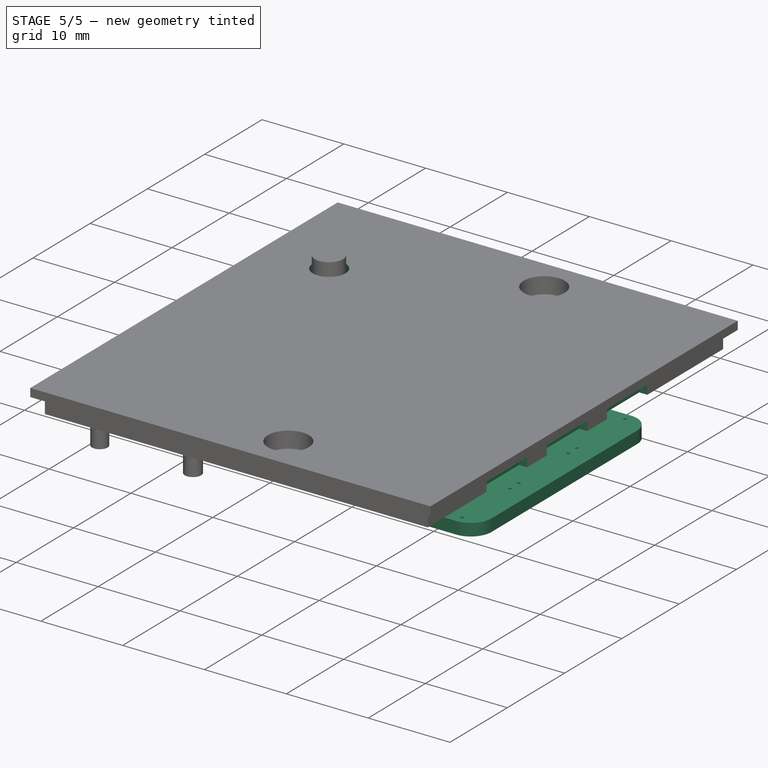
[diagram: stage 5 of 5 — iso view after this stage's code; geometry added in this stage tinted green]
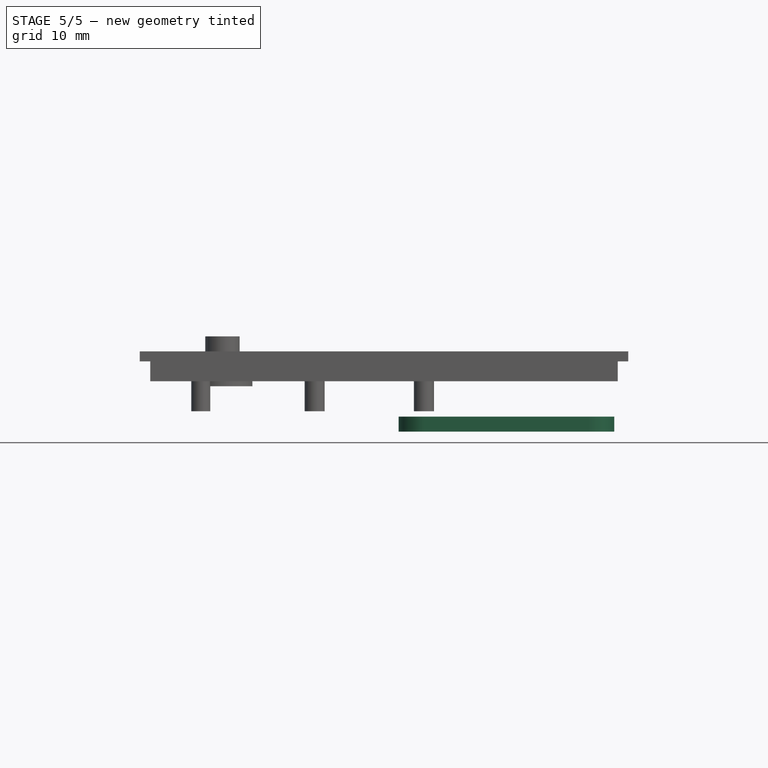
[diagram: stage 5 of 5 — front view after this stage's code; geometry added in this stage tinted green]
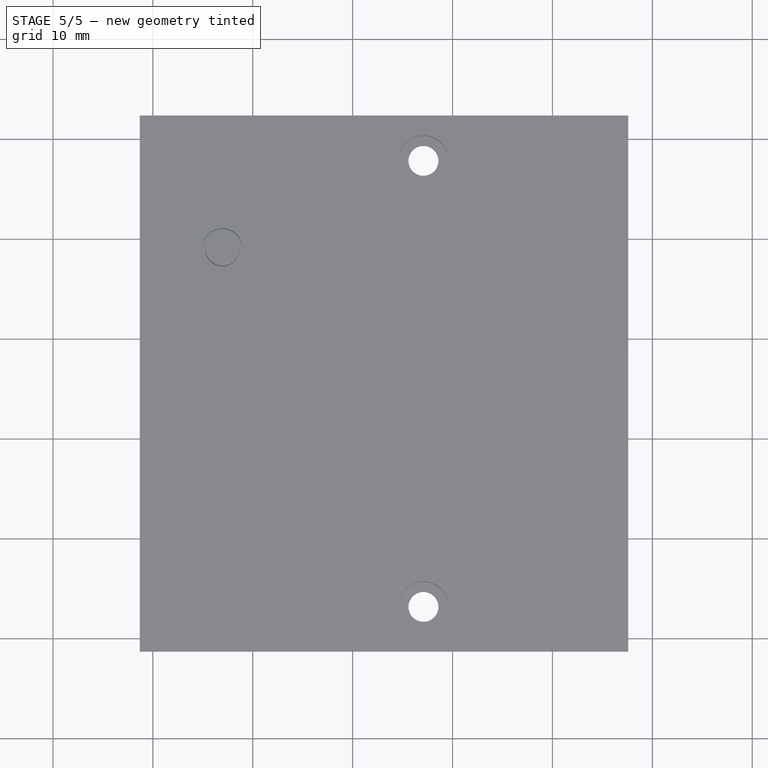
[diagram: stage 5 of 5 — top view after this stage's code; geometry added in this stage tinted green]
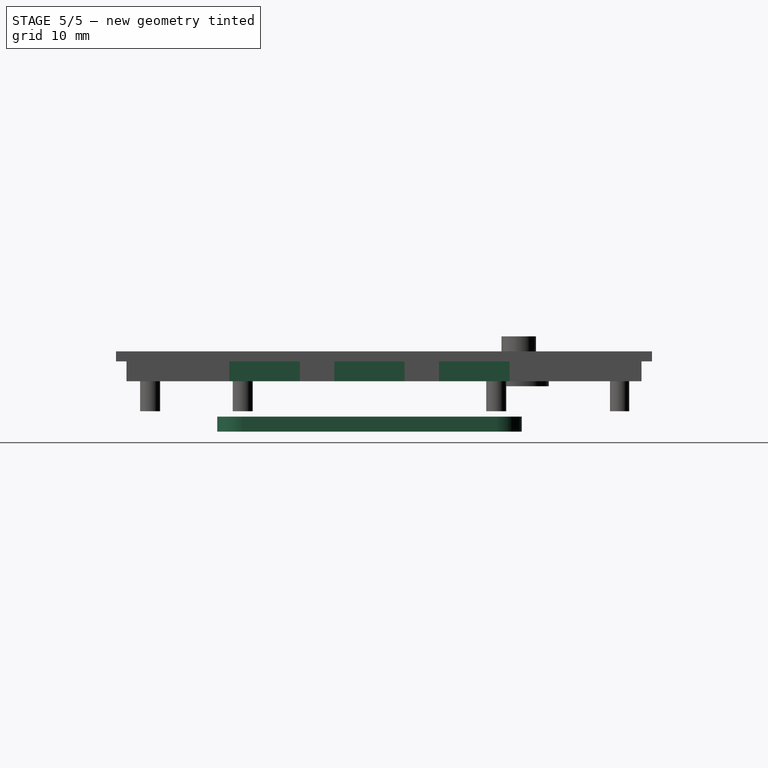
[diagram: stage 5 of 5 — right view after this stage's code; geometry added in this stage tinted green]
FEATURE [Sketcher::SketchObject] Sketch009
  ArcFitTolerance = 1e-06
  AttachmentSupport = -> [Pocket002]
  ExternalGeometry = -> [Pocket002]
  FullyConstrained = true
  MakeInternals = false
  MapMode = 5
  Placement = pos=(0,0,5.0393) rot=(0,0,1;0rad)
  sketch-geometry (2):
    g0: Circle CenterX=27.0855 CenterY=3.08256 CenterZ=0 NormalX=0 NormalY=0 NormalZ=1 AngleXU=0 Radius=1.5
    g1: Circle CenterX=27.0855 CenterY=47.738 CenterZ=0 NormalX=0 NormalY=0 NormalZ=1 AngleXU=0 Radius=1.5
  constraints (4):
    c: Diameter(g0) = 3
    c: Coincident(g0,g-3)
    c: Diameter(g1) = 3
    c: Coincident(g1,g-4)
FEATURE [PartDesign::Pocket] Pocket003
  BaseFeature = -> Pocket002
  Direction = (0,0,-1)
  Length = 5
  Length2 = 5
  Profile = -> Sketch009
  ReferenceAxis = -> Sketch009 [N_Axis]
  Refine = true
  Suppressed = false
  Type = 0
FEATURE [Sketcher::SketchObject] Sketch010
  ArcFitTolerance = 1e-06
  AttachmentSupport = -> [Pocket003]
  ExternalGeometry = -> [Pocket003]
  FullyConstrained = false
  MakeInternals = false
  MapMode = 5
  Placement = pos=(46.5355,0,0) rot=(0.57735,0.57735,0.57735;2.0944rad)
  sketch-geometry (12):
    g0: LineSegment StartX=20.4267 StartY=6.0393 StartZ=0 EndX=20.4267 EndY=4.0393 EndZ=0
    g1: LineSegment StartX=20.4267 StartY=4.0393 StartZ=0 EndX=27.4624 EndY=4.0393 EndZ=0
    g2: LineSegment StartX=27.4624 StartY=4.0393 StartZ=0 EndX=27.4624 EndY=6.0393 EndZ=0
    g3: LineSegment StartX=27.4624 StartY=6.0393 StartZ=0 EndX=20.4267 EndY=6.0393 EndZ=0
    g4: LineSegment StartX=30.9122 StartY=6.0393 StartZ=0 EndX=30.9122 EndY=4.0393 EndZ=0
    g5: LineSegment StartX=30.9122 StartY=4.0393 StartZ=0 EndX=37.9669 EndY=4.0393 EndZ=0
    g6: LineSegment StartX=37.9669 StartY=4.0393 StartZ=0 EndX=37.9669 EndY=6.0393 EndZ=0
    g7: LineSegment StartX=37.9669 StartY=6.0393 StartZ=0 EndX=30.9122 EndY=6.0393 EndZ=0
    g8: LineSegment StartX=9.91503 StartY=6.0393 StartZ=0 EndX=9.91503 EndY=4.0393 EndZ=0
    g9: LineSegment StartX=9.91503 StartY=4.0393 StartZ=0 EndX=16.9946 EndY=4.0393 EndZ=0
    g10: LineSegment StartX=16.9946 StartY=4.0393 StartZ=0 EndX=16.9946 EndY=6.0393 EndZ=0
    g11: LineSegment StartX=16.9946 StartY=6.0393 StartZ=0 EndX=9.91503 EndY=6.0393 EndZ=0
  constraints (30):
    c: Coincident(g0,g1)
    c: Coincident(g1,g2)
    c: Coincident(g2,g3)
    c: Coincident(g3,g0)
    c: Vertical(g0)
    c: Vertical(g2)
    c: Horizontal(g1)
    c: Horizontal(g3)
    c: PointOnObject(g1,g-4)
    c: PointOnObject(g2,g-3)
    c: Coincident(g4,g5)
    c: Coincident(g5,g6)
    c: Coincident(g6,g7)
    c: Coincident(g7,g4)
    c: Vertical(g4)
    c: Vertical(g6)
    c: Horizontal(g5)
    c: Horizontal(g7)
    c: PointOnObject(g6,g-3)
    c: PointOnObject(g5,g-4)
    c: Coincident(g8,g9)
    c: Coincident(g9,g10)
    c: Coincident(g10,g11)
    c: Coincident(g11,g8)
    c: Vertical(g8)
    c: Vertical(g10)
    c: Horizontal(g9)
    c: Horizontal(g11)
    c: PointOnObject(g10,g-3)
    c: PointOnObject(g9,g-4)
FEATURE [PartDesign::Pocket] Pocket004
  BaseFeature = -> Pocket003
  Direction = (-1,0,0)
  Length = 1
  Length2 = 5
  Profile = -> Sketch010
  ReferenceAxis = -> Sketch010 [N_Axis]
  Refine = true
  Suppressed = false
  Type = 0
FEATURE [Sketcher::SketchObject] Sketch011
  ArcFitTolerance = 1e-06
  AttachmentSupport = -> [Pocket004]
  FullyConstrained = false
  MakeInternals = false
  MapMode = 5
  Placement = pos=(0,0,7.0393) rot=(0,0,1;0rad)
  sketch-geometry (1):
    g0: Circle CenterX=6.96913 CenterY=38.9322 CenterZ=0 NormalX=0 NormalY=0 NormalZ=1 AngleXU=0 Radius=2
  constraints (1):
    c: Diameter(g0) = 4
FEATURE [PartDesign::Pocket] Pocket005
  BaseFeature = -> Pocket004
  Direction = (0,0,-1)
  Length = 5
  Length2 = 5
  Profile = -> Sketch011
  ReferenceAxis = -> Sketch011 [N_Axis]
  Refine = true
  Suppressed = false
  Type = 0
FEATURE [PartDesign::Body] Body002
  AllowCompound = false
  Group = -> [CopyPocket005,Sketch015,Pad009,Sketch016,Pad010]
  Origin = -> Origin006
  Tip = -> Pad010
FEATURE [Part::FeaturePython] Board  # WARN: FeaturePython — macro-defined, semantics opaque (R4)
  AutoUpdate = true
  Border = -> PCB_Border
  Display = true
  Holes = -> PCB_Holes
  Parent = -> Adafruit_Si5351A_PCB
  Placement = pos=(24.6,39.2,-1) rot=(0,0,1;4.71239rad)
  Thickness = 1.5
FEATURE [App::DocumentObjectGroup] PCB
  Group = -> [Board]
FEATURE [App::Part] Adafruit_Si5351A_PCB  label="Adafruit Si5351A_PCB"
  Group = -> [PCB,PCB_Border,Board,PCB_Holes]
  Origin = -> Origin003
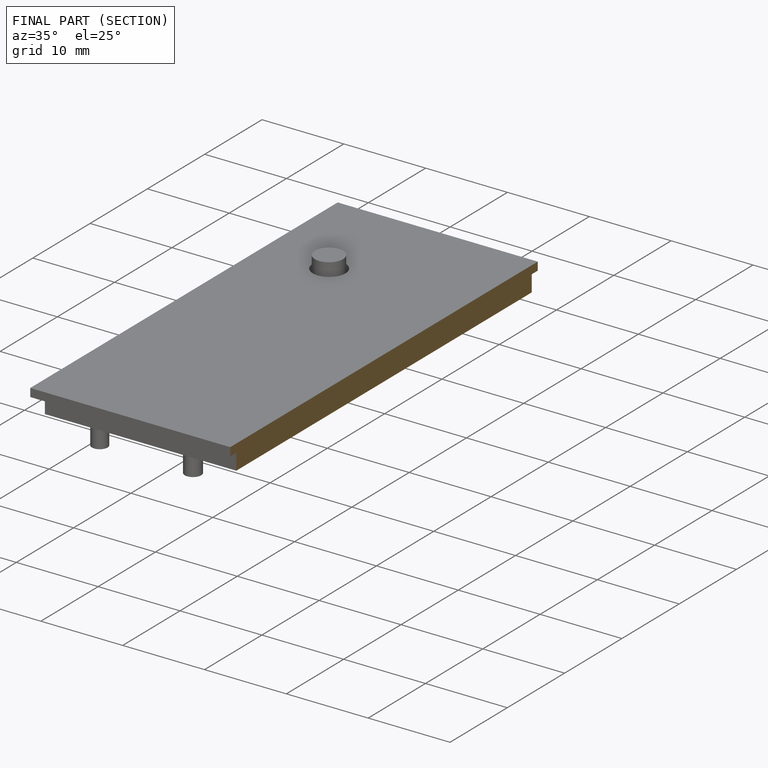
[diagram: finished part — half-section view (interior)]
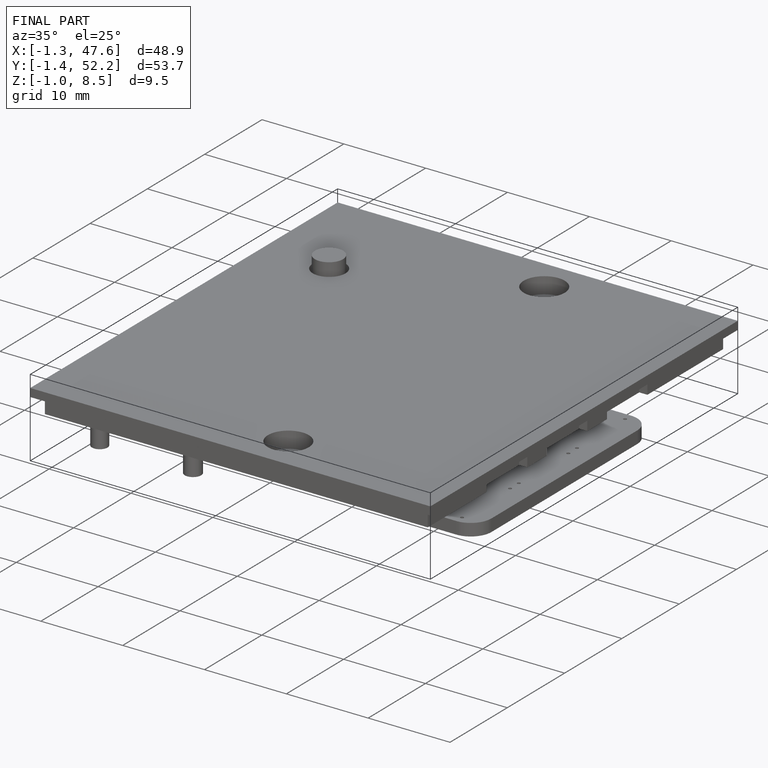
[diagram: finished part — iso view with bounding-box wireframe]
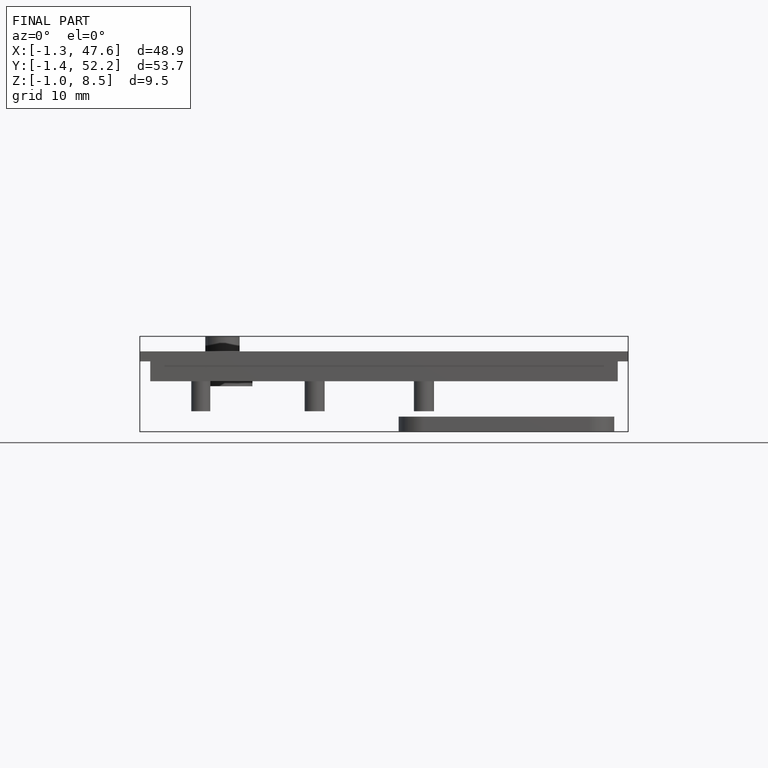
[diagram: finished part — front view with bounding-box wireframe]
